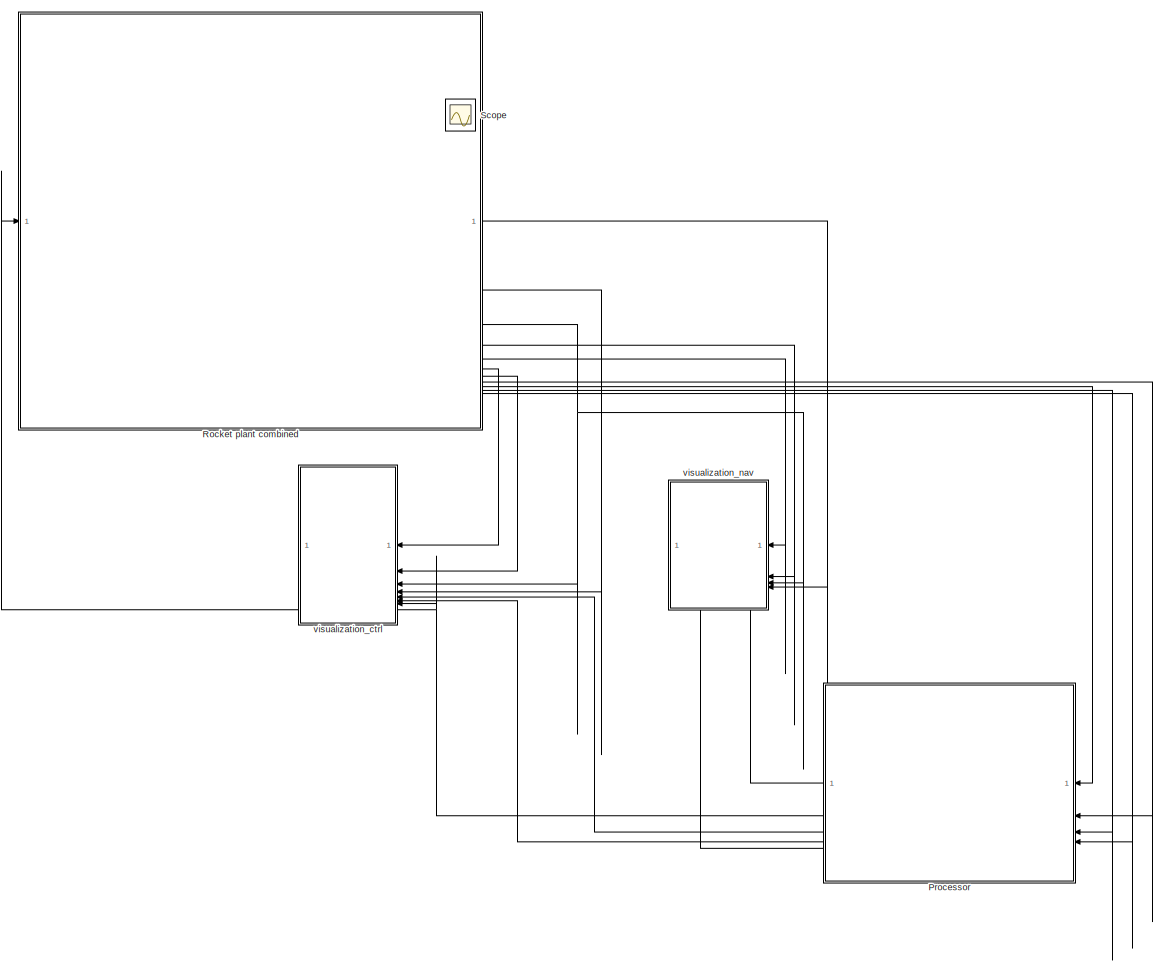
[diagram: root canvas - part 1/1, most of the canvas]
MODEL slx_d3ebb574c5d7
KIND model
CONFIG AbsTol = auto
CONFIG EnableMultiTasking = off
CONFIG FixedStep = auto
CONFIG InitFcn = %%% Sensor with 3D measurement\n% Define elements\nelems(1) = Simulink.BusElement;\nelems(1).Name = 'meas';\nelems(1).Dimensions = 3;\nelems(1).DataType = 'double';\nelems(2) = Simulink.BusElement;\nelems(2).Name = 'status';\nelems(2).Dimensions = 1;\nelems(2).DataType = 'boolean';\n% Create bus\nSensor3DBus = Simulink.Bus;\nSensor3DBus.Elements = elems;\n\n%%% Sensor with 1D measurement\n% Define elements\nelems...<+290ch>
CONFIG MaxStep = 0.002
CONFIG MinStep = auto
CONFIG RelTol = 1e-5
CONFIG SampleTimeConstraint = Unconstrained
CONFIG SolverName = ode45
CONFIG StartTime = 0.0
CONFIG StopTime = 70
BLOCK [SubSystem] Processor
  PortSchema = {"entries":[{"content":{"sides":[{"content":{"connectorIds":["In1","In2","In4","In3"]},"type":"ConnectorPlacement.EquallySpacedRectSide","uuid":"3a8674be-3010-4d68-a33c-3eead0b8fa7c"},{"content":{"connectorIds":["Out1","Out5","Out3","Out4","Out2"],"side":"RIGHT"},"type":"ConnectorPlacement.EquallySpacedRectSide","uuid":"adad2a77-0efa-48c4-a551-5f502a84ce9d"},{"content":{"side":"TOP"},"type":"Conne...<+268ch>
  ReferencedSubsystem = processor
BLOCK [SubSystem] Rocket plant combined
  PortSchema = {"entries":[{"content":{"sides":[{"content":{"connectorIds":["In1"]},"type":"ConnectorPlacement.EquallySpacedRectSide","uuid":"b1d5c63c-66b0-4e52-a383-d076c7e4c195"},{"content":{"connectorIds":["Out1","Out2","Out3","Out4","Out5","Out8","Out11","Out10","Out9","Out7","Out6"],"side":"RIGHT"},"type":"ConnectorPlacement.EquallySpacedRectSide","uuid":"83da6c70-f7e5-4234-84e8-1f2c400394e6"},{"content":{"...<+294ch>
  ReferencedSubsystem = rocket_plant_combined
BLOCK [Scope] Scope
  ActiveDisplayYMaximum = 9.80609
  ActiveDisplayYMinimum = 9.79326
  DataLoggingVariableName = ScopeData1
  Floating = off
  GraphicalSettings = {"GraphicalSettings":{"LegacySettings":true,"Style":{"AxesScalingProperties":{"ScaleAxesLimitsAtStop":false},"Style":{"AxesColor":"[0 0 0]","ChannelNames":[""],"ColorOrder":"[1 0.909803921568627 0.392156862745098;0.149019607843137 0.549019607843137 0.866666666666667;0.96078431372549 0.466666666666667 0.16078431372549;0.286274509803922 0.858823529411765 0.250980392156863;0.752941176470588 0.3607843...<+538ch>
  IOType = viewer
  MultipleDisplayCache = [{"MaxYLimMag":9.80609,"MaxYLimReal":9.80609,"MinYLimMag":9.79326,"MinYLimReal":9.79326,"PlotAsMagnitudePhase":false,"ShowGrid":true,"ShowLegend":false,"Title":"%<SignalLabel>","YLabel":""}]
  NumInputPorts = 1
  WasSavedAsWebScope = on
BLOCK [SubSystem] visualization_ctrl
  ReferencedSubsystem = visualization_ctrl
BLOCK [SubSystem] visualization_nav
  PortSchema = {"entries":[{"content":{"sides":[{"content":{"connectorIds":["In1","In3","In4","In5"]},"type":"ConnectorPlacement.EquallySpacedRectSide","uuid":"dc5fb855-67c6-44f2-b840-f485865d62e2"},{"content":{"side":"RIGHT"},"type":"ConnectorPlacement.EquallySpacedRectSide","uuid":"f011a5d6-ba81-4cae-9458-00e11c499556"},{"content":{"side":"TOP"},"type":"ConnectorPlacement.EquallySpacedRectSide","uuid":"2cb02a9...<+371ch>
  ReferencedSubsystem = visualization_nav
LINE Processor:1 -> visualization_nav:6
NET Processor:2 -> Rocket plant combined:1, visualization_ctrl:7
LINE Processor:3 -> visualization_ctrl:5
LINE Processor:4 -> visualization_ctrl:6
LINE Processor:5 -> visualization_nav:2
LINE Rocket plant combined:1 -> visualization_nav:5
LINE Rocket plant combined:10 -> Processor:3
LINE Rocket plant combined:11 -> Processor:4
LINE Rocket plant combined:2 -> visualization_ctrl:4
NET Rocket plant combined:3 -> visualization_ctrl:3, visualization_nav:4
LINE Rocket plant combined:4 -> visualization_nav:3
LINE Rocket plant combined:5 -> visualization_nav:1
LINE Rocket plant combined:6 -> visualization_ctrl:1
LINE Rocket plant combined:7 -> visualization_ctrl:2
LINE Rocket plant combined:8 -> Processor:2
LINE Rocket plant combined:9 -> Processor:1
note: NET lines group one-source signal fan-out (src -> all destinations, sorted); 1:1 wires keep LINE
